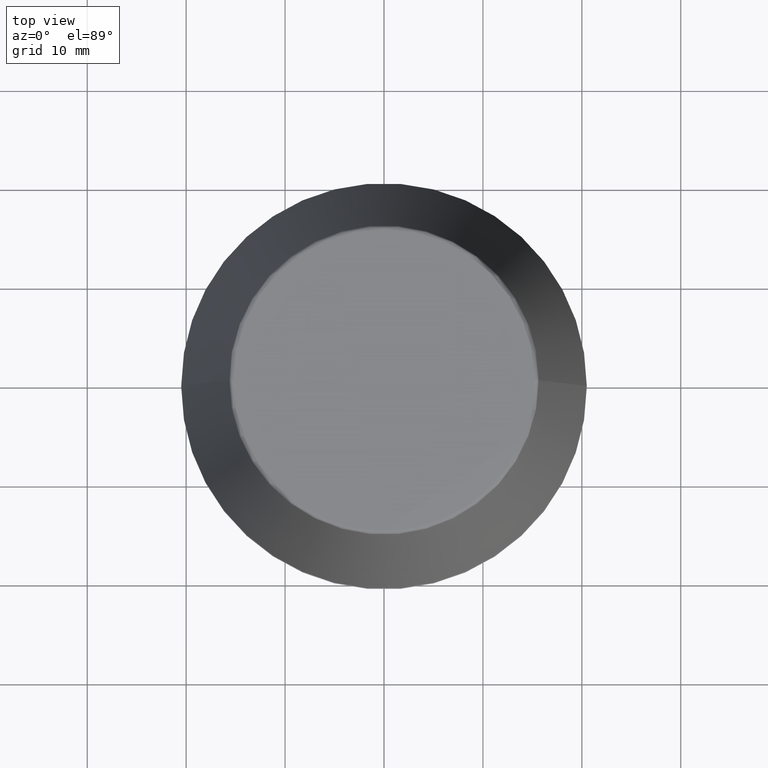
[diagram: clean part render]
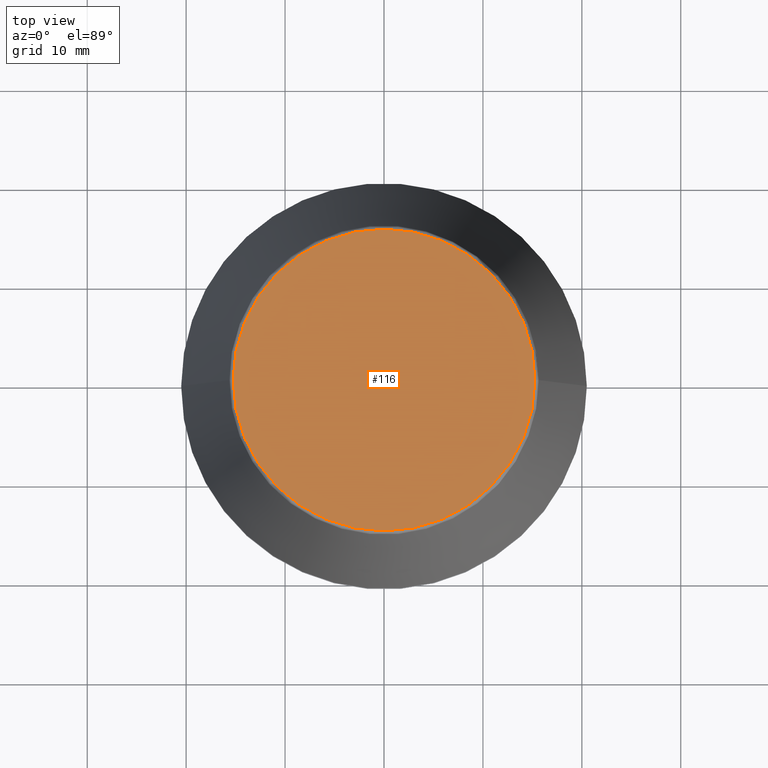
[diagram: same view with one face highlighted and labeled with its STEP entity id]
A machine part, top view. The second image highlights one B-rep face of the part: STEP entity #116.
In plain terms, the highlighted planar face has unit normal (0, 0, -1).
Its self-contained STEP definition (entity closure, byte-faithful):
#11 = DIRECTION ( 'NONE',  ( 1.000000000000000000, 0.0000000000000000000, 0.0000000000000000000 ) ) ;
#14 = DIRECTION ( 'NONE',  ( -0.0000000000000000000, -0.0000000000000000000, 1.000000000000000000 ) ) ;
#39 = EDGE_CURVE ( 'NONE', #286, #323, #205, .T. ) ;
#53 = DIRECTION ( 'NONE',  ( -1.000000000000000000, 0.0000000000000000000, -0.0000000000000000000 ) ) ;
#82 = CARTESIAN_POINT ( 'NONE',  ( 0.0000000000000000000, 15.24773554530077600, 46.00000000000000000 ) ) ;
#87 = AXIS2_PLACEMENT_3D ( 'NONE', #82, #355, #53 ) ;
#99 = CARTESIAN_POINT ( 'NONE',  ( 15.24773554530077600, 0.0000000000000000000, 46.00000000000000000 ) ) ;
#116 = ADVANCED_FACE ( 'NONE', ( #305 ), #378, .F. ) ;
#156 = ORIENTED_EDGE ( 'NONE', *, *, #233, .T. ) ;
#205 = CIRCLE ( 'NONE', #347, 15.24773554530077600 ) ;
#208 = ORIENTED_EDGE ( 'NONE', *, *, #39, .T. ) ;
#215 = EDGE_LOOP ( 'NONE', ( #156, #208 ) ) ;
#233 = EDGE_CURVE ( 'NONE', #323, #286, #257, .T. ) ;
#257 = CIRCLE ( 'NONE', #265, 15.24773554530077600 ) ;
#265 = AXIS2_PLACEMENT_3D ( 'NONE', #301, #14, #11 ) ;
#268 = CARTESIAN_POINT ( 'NONE',  ( 0.0000000000000000000, 0.0000000000000000000, 46.00000000000000000 ) ) ;
#286 = VERTEX_POINT ( 'NONE', #376 ) ;
#301 = CARTESIAN_POINT ( 'NONE',  ( 0.0000000000000000000, 0.0000000000000000000, 46.00000000000000000 ) ) ;
#305 = FACE_OUTER_BOUND ( 'NONE', #215, .T. ) ;
#323 = VERTEX_POINT ( 'NONE', #99 ) ;
#335 = DIRECTION ( 'NONE',  ( -0.0000000000000000000, -0.0000000000000000000, 1.000000000000000000 ) ) ;
#347 = AXIS2_PLACEMENT_3D ( 'NONE', #268, #335, #386 ) ;
#355 = DIRECTION ( 'NONE',  ( 0.0000000000000000000, 0.0000000000000000000, -1.000000000000000000 ) ) ;
#376 = CARTESIAN_POINT ( 'NONE',  ( -15.24773554530077600, 1.891563625393435400E-015, 46.00000000000000000 ) ) ;
#378 = PLANE ( 'NONE',  #87 ) ;
#386 = DIRECTION ( 'NONE',  ( 1.000000000000000000, 0.0000000000000000000, 0.0000000000000000000 ) ) ;